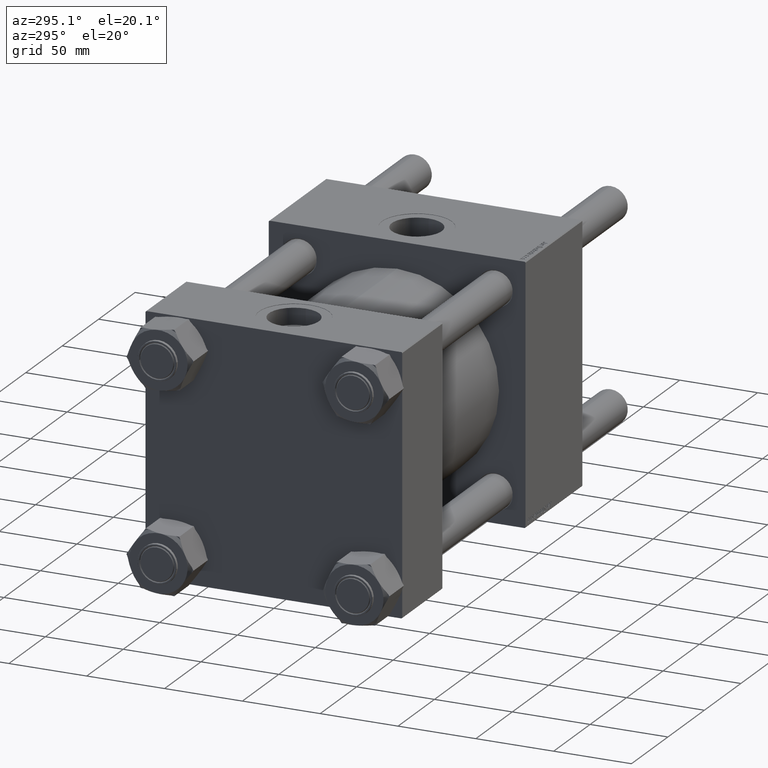
[diagram: clean part render]
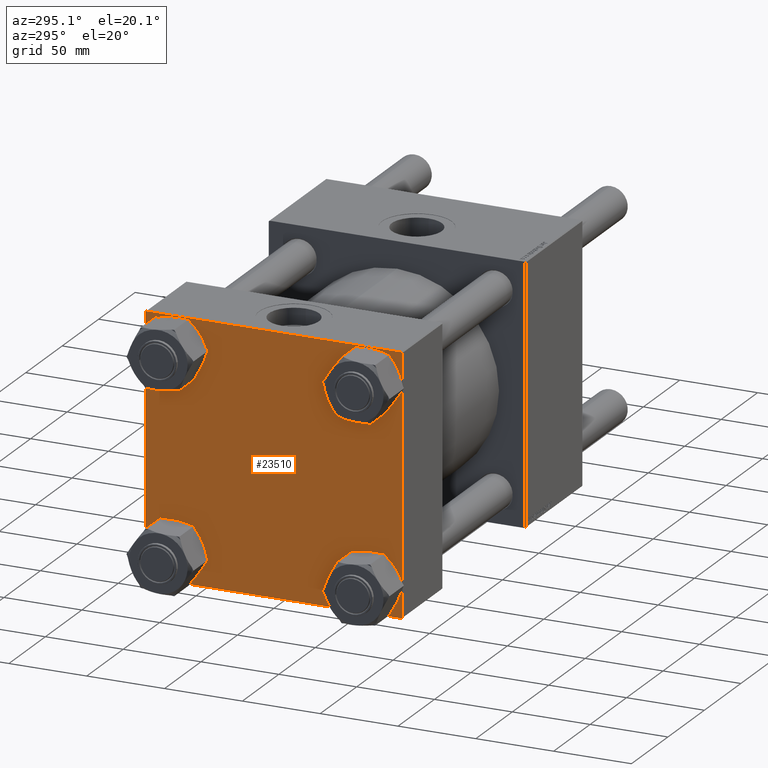
[diagram: same view with one face highlighted and labeled with its STEP entity id]
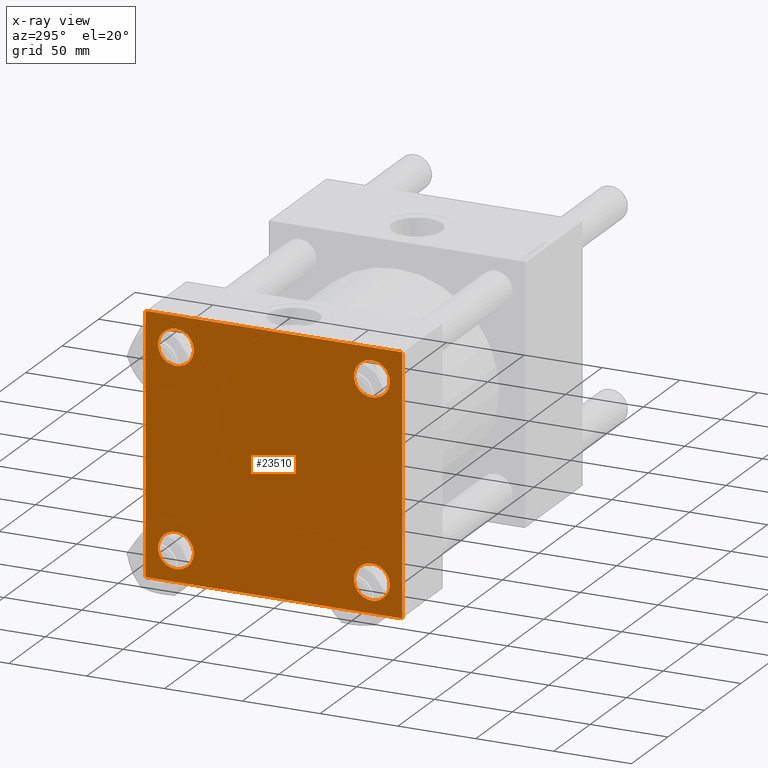
[diagram: x-ray of the same camera — body ghosted, the highlighted face saturated]
A machine part, auxiliary view. The second image highlights one B-rep face of the part: STEP entity #23510.
The next image is the same camera in x-ray: the body ghosted, the highlighted face saturated — about 0% of this face is hidden behind the body in this view.
In plain terms, the highlighted planar face has unit normal (-1, 0, 0).
Its self-contained STEP definition (entity closure, byte-faithful):
#228 = DIRECTION ( 'NONE',  ( 0.000000000000000000, -1.000000000000000000, -1.682156097916903588E-16 ) ) ;
#466 = CARTESIAN_POINT ( 'NONE',  ( 0.000000000000000000, 62.95000000000000284, -62.95000000000000284 ) ) ;
#1474 = VECTOR ( 'NONE', #5852, 1000.000000000000114 ) ;
#1678 = DIRECTION ( 'NONE',  ( 1.000000000000000000, -0.000000000000000000, -0.000000000000000000 ) ) ;
#1760 = FACE_BOUND ( 'NONE', #27392, .T. ) ;
#1916 = AXIS2_PLACEMENT_3D ( 'NONE', #466, #18987, #49662 ) ;
#2059 = ORIENTED_EDGE ( 'NONE', *, *, #8754, .T. ) ;
#2160 = VECTOR ( 'NONE', #40544, 999.9999999999998863 ) ;
#2270 = VERTEX_POINT ( 'NONE', #12460 ) ;
#3208 = ORIENTED_EDGE ( 'NONE', *, *, #28586, .T. ) ;
#3799 = CIRCLE ( 'NONE', #1916, 11.50000000000001066 ) ;
#4306 = DIRECTION ( 'NONE',  ( 0.000000000000000000, 0.000000000000000000, 1.000000000000000000 ) ) ;
#5560 = VERTEX_POINT ( 'NONE', #42546 ) ;
#5615 = VERTEX_POINT ( 'NONE', #44273 ) ;
#5852 = DIRECTION ( 'NONE',  ( -0.000000000000000000, -0.7071067811865474617, -0.7071067811865474617 ) ) ;
#6665 = FACE_OUTER_BOUND ( 'NONE', #9221, .T. ) ;
#6795 = CARTESIAN_POINT ( 'NONE',  ( 0.000000000000000000, -82.00000000000000000, -82.50000000000000000 ) ) ;
#8444 = EDGE_LOOP ( 'NONE', ( #48193, #38092 ) ) ;
#8754 = EDGE_CURVE ( 'NONE', #53440, #10338, #3799, .T. ) ;
#8894 = AXIS2_PLACEMENT_3D ( 'NONE', #10578, #32850, #50510 ) ;
#9001 = VERTEX_POINT ( 'NONE', #23133 ) ;
#9159 = CARTESIAN_POINT ( 'NONE',  ( 0.000000000000000000, 82.00000000000005684, -82.49999999999997158 ) ) ;
#9221 = EDGE_LOOP ( 'NONE', ( #26899, #17389, #21384, #16533, #14014, #11557, #28883, #15325 ) ) ;
#9601 = ORIENTED_EDGE ( 'NONE', *, *, #54724, .T. ) ;
#10160 = LINE ( 'NONE', #53867, #2160 ) ;
#10338 = VERTEX_POINT ( 'NONE', #40356 ) ;
#10578 = CARTESIAN_POINT ( 'NONE',  ( 0.000000000000000000, 62.95000000000000284, 62.95000000000000284 ) ) ;
#10613 = LINE ( 'NONE', #45910, #13653 ) ;
#10646 = DIRECTION ( 'NONE',  ( 0.000000000000000000, 0.000000000000000000, 1.000000000000000000 ) ) ;
#11188 = CARTESIAN_POINT ( 'NONE',  ( 0.000000000000000000, 82.50000000000002842, 82.50000000000002842 ) ) ;
#11449 = VECTOR ( 'NONE', #37607, 1000.000000000000114 ) ;
#11482 = CARTESIAN_POINT ( 'NONE',  ( 0.000000000000000000, -82.50000000000000000, -81.99999999999998579 ) ) ;
#11557 = ORIENTED_EDGE ( 'NONE', *, *, #56462, .T. ) ;
#12113 = CARTESIAN_POINT ( 'NONE',  ( 0.000000000000000000, 82.50000000000002842, 82.50000000000002842 ) ) ;
#12460 = CARTESIAN_POINT ( 'NONE',  ( 0.000000000000000000, 62.95000000000000284, 74.45000000000001705 ) ) ;
#12569 = EDGE_CURVE ( 'NONE', #37888, #57236, #44227, .T. ) ;
#13056 = ORIENTED_EDGE ( 'NONE', *, *, #43770, .T. ) ;
#13653 = VECTOR ( 'NONE', #39516, 1000.000000000000114 ) ;
#13988 = CARTESIAN_POINT ( 'NONE',  ( 0.000000000000000000, 62.95000000000000284, -62.95000000000000284 ) ) ;
#14014 = ORIENTED_EDGE ( 'NONE', *, *, #16451, .F. ) ;
#14104 = VERTEX_POINT ( 'NONE', #22517 ) ;
#14460 = VERTEX_POINT ( 'NONE', #49904 ) ;
#14724 = DIRECTION ( 'NONE',  ( 0.000000000000000000, 0.000000000000000000, 1.000000000000000000 ) ) ;
#15325 = ORIENTED_EDGE ( 'NONE', *, *, #40228, .T. ) ;
#15649 = DIRECTION ( 'NONE',  ( -1.000000000000000000, 0.000000000000000000, 0.000000000000000000 ) ) ;
#15657 = EDGE_LOOP ( 'NONE', ( #9601, #13056 ) ) ;
#15950 = VECTOR ( 'NONE', #34027, 1000.000000000000000 ) ;
#16101 = LINE ( 'NONE', #42429, #36342 ) ;
#16216 = FACE_BOUND ( 'NONE', #52111, .T. ) ;
#16451 = EDGE_CURVE ( 'NONE', #14104, #34460, #16101, .T. ) ;
#16533 = ORIENTED_EDGE ( 'NONE', *, *, #22488, .T. ) ;
#17389 = ORIENTED_EDGE ( 'NONE', *, *, #51346, .T. ) ;
#17483 = CARTESIAN_POINT ( 'NONE',  ( 0.000000000000000000, 62.95000000000000284, 51.44999999999999574 ) ) ;
#17910 = CARTESIAN_POINT ( 'NONE',  ( 0.000000000000000000, -62.94999999999998153, 62.95000000000001705 ) ) ;
#18334 = DIRECTION ( 'NONE',  ( 0.000000000000000000, 0.000000000000000000, 1.000000000000000000 ) ) ;
#18786 = VERTEX_POINT ( 'NONE', #20112 ) ;
#18987 = DIRECTION ( 'NONE',  ( 1.000000000000000000, -0.000000000000000000, -0.000000000000000000 ) ) ;
#19178 = LINE ( 'NONE', #19460, #1474 ) ;
#19460 = CARTESIAN_POINT ( 'NONE',  ( 0.000000000000000000, 82.25000000000001421, -82.25000000000001421 ) ) ;
#19922 = CIRCLE ( 'NONE', #35675, 11.50000000000001066 ) ;
#20112 = CARTESIAN_POINT ( 'NONE',  ( 0.000000000000000000, 82.50000000000002842, 82.00000000000005684 ) ) ;
#20555 = DIRECTION ( 'NONE',  ( 1.000000000000000000, -0.000000000000000000, -0.000000000000000000 ) ) ;
#20563 = FACE_BOUND ( 'NONE', #15657, .T. ) ;
#21067 = ORIENTED_EDGE ( 'NONE', *, *, #51149, .T. ) ;
#21384 = ORIENTED_EDGE ( 'NONE', *, *, #12569, .T. ) ;
#21859 = CARTESIAN_POINT ( 'NONE',  ( 0.000000000000000000, -62.94999999999998153, -62.95000000000001705 ) ) ;
#22250 = CARTESIAN_POINT ( 'NONE',  ( 0.000000000000000000, 82.50000000000002842, -82.49999999999997158 ) ) ;
#22488 = EDGE_CURVE ( 'NONE', #57236, #34460, #10160, .T. ) ;
#22517 = CARTESIAN_POINT ( 'NONE',  ( 0.000000000000000000, -82.49999999999997158, 82.00000000000001421 ) ) ;
#22597 = VECTOR ( 'NONE', #27431, 1000.000000000000000 ) ;
#22990 = VERTEX_POINT ( 'NONE', #43839 ) ;
#23133 = CARTESIAN_POINT ( 'NONE',  ( 0.000000000000000000, -62.94999999999998153, 51.45000000000000995 ) ) ;
#23510 = ADVANCED_FACE ( 'NONE', ( #1760, #20563, #16216, #46309, #6665 ), #37344, .T. ) ;
#24051 = DIRECTION ( 'NONE',  ( 0.000000000000000000, 0.000000000000000000, 1.000000000000000000 ) ) ;
#24688 = EDGE_CURVE ( 'NONE', #14460, #5615, #51754, .T. ) ;
#25014 = EDGE_CURVE ( 'NONE', #9001, #31539, #27267, .T. ) ;
#25084 = DIRECTION ( 'NONE',  ( 0.000000000000000000, -1.682156097916903588E-16, -1.000000000000000000 ) ) ;
#25096 = DIRECTION ( 'NONE',  ( 1.000000000000000000, -0.000000000000000000, -0.000000000000000000 ) ) ;
#26608 = DIRECTION ( 'NONE',  ( 1.000000000000000000, -0.000000000000000000, -0.000000000000000000 ) ) ;
#26899 = ORIENTED_EDGE ( 'NONE', *, *, #35905, .T. ) ;
#27267 = CIRCLE ( 'NONE', #32779, 11.50000000000001066 ) ;
#27392 = EDGE_LOOP ( 'NONE', ( #3208, #41308 ) ) ;
#27415 = CIRCLE ( 'NONE', #8894, 11.50000000000001066 ) ;
#27431 = DIRECTION ( 'NONE',  ( 0.000000000000000000, -1.000000000000000000, -8.410780489584519171E-17 ) ) ;
#28185 = AXIS2_PLACEMENT_3D ( 'NONE', #21859, #52815, #39490 ) ;
#28395 = VERTEX_POINT ( 'NONE', #17483 ) ;
#28586 = EDGE_CURVE ( 'NONE', #31539, #9001, #19922, .T. ) ;
#28883 = ORIENTED_EDGE ( 'NONE', *, *, #24688, .F. ) ;
#30123 = CIRCLE ( 'NONE', #37491, 11.50000000000001066 ) ;
#30592 = CARTESIAN_POINT ( 'NONE',  ( 0.000000000000000000, 62.95000000000000284, -74.45000000000001705 ) ) ;
#31510 = VERTEX_POINT ( 'NONE', #56774 ) ;
#31539 = VERTEX_POINT ( 'NONE', #34771 ) ;
#32779 = AXIS2_PLACEMENT_3D ( 'NONE', #54721, #20555, #24051 ) ;
#32850 = DIRECTION ( 'NONE',  ( 1.000000000000000000, -0.000000000000000000, -0.000000000000000000 ) ) ;
#34027 = DIRECTION ( 'NONE',  ( 0.000000000000000000, 0.000000000000000000, -1.000000000000000000 ) ) ;
#34460 = VERTEX_POINT ( 'NONE', #11482 ) ;
#34771 = CARTESIAN_POINT ( 'NONE',  ( 0.000000000000000000, -62.94999999999998153, 74.45000000000003126 ) ) ;
#35675 = AXIS2_PLACEMENT_3D ( 'NONE', #17910, #26608, #4306 ) ;
#35905 = EDGE_CURVE ( 'NONE', #18786, #31510, #42994, .T. ) ;
#36342 = VECTOR ( 'NONE', #25084, 1000.000000000000000 ) ;
#37344 = PLANE ( 'NONE',  #51205 ) ;
#37491 = AXIS2_PLACEMENT_3D ( 'NONE', #13988, #39165, #18334 ) ;
#37607 = DIRECTION ( 'NONE',  ( 0.000000000000000000, 0.7071067811865474617, -0.7071067811865474617 ) ) ;
#37888 = VERTEX_POINT ( 'NONE', #9159 ) ;
#38092 = ORIENTED_EDGE ( 'NONE', *, *, #46948, .T. ) ;
#38195 = CARTESIAN_POINT ( 'NONE',  ( 0.000000000000000000, 0.000000000000000000, 0.000000000000000000 ) ) ;
#39165 = DIRECTION ( 'NONE',  ( 1.000000000000000000, -0.000000000000000000, -0.000000000000000000 ) ) ;
#39490 = DIRECTION ( 'NONE',  ( 0.000000000000000000, 0.000000000000000000, 1.000000000000000000 ) ) ;
#39516 = DIRECTION ( 'NONE',  ( -0.000000000000000000, 0.7071067811865474617, 0.7071067811865474617 ) ) ;
#40228 = EDGE_CURVE ( 'NONE', #14460, #18786, #46289, .T. ) ;
#40356 = CARTESIAN_POINT ( 'NONE',  ( 0.000000000000000000, 62.95000000000000284, -51.44999999999999574 ) ) ;
#40544 = DIRECTION ( 'NONE',  ( 0.000000000000000000, -0.7071067811865376918, 0.7071067811865574537 ) ) ;
#40549 = EDGE_CURVE ( 'NONE', #2270, #28395, #55821, .T. ) ;
#41308 = ORIENTED_EDGE ( 'NONE', *, *, #25014, .T. ) ;
#41598 = CARTESIAN_POINT ( 'NONE',  ( 0.000000000000000000, -62.94999999999998153, -62.95000000000001705 ) ) ;
#42259 = DIRECTION ( 'NONE',  ( 0.000000000000000000, 0.000000000000000000, 1.000000000000000000 ) ) ;
#42429 = CARTESIAN_POINT ( 'NONE',  ( 0.000000000000000000, -82.49999999999997158, 82.50000000000001421 ) ) ;
#42546 = CARTESIAN_POINT ( 'NONE',  ( 0.000000000000000000, -62.94999999999998153, -74.45000000000003126 ) ) ;
#42690 = VECTOR ( 'NONE', #228, 1000.000000000000000 ) ;
#42994 = LINE ( 'NONE', #11188, #15950 ) ;
#43770 = EDGE_CURVE ( 'NONE', #5560, #22990, #47596, .T. ) ;
#43839 = CARTESIAN_POINT ( 'NONE',  ( 0.000000000000000000, -62.94999999999998153, -51.45000000000000995 ) ) ;
#44227 = LINE ( 'NONE', #22250, #42690 ) ;
#44273 = CARTESIAN_POINT ( 'NONE',  ( 0.000000000000000000, -81.99999999999997158, 82.50000000000001421 ) ) ;
#45910 = CARTESIAN_POINT ( 'NONE',  ( 0.000000000000000000, -82.25000000000000000, 82.25000000000000000 ) ) ;
#46289 = LINE ( 'NONE', #50930, #11449 ) ;
#46309 = FACE_BOUND ( 'NONE', #8444, .T. ) ;
#46948 = EDGE_CURVE ( 'NONE', #28395, #2270, #27415, .T. ) ;
#47512 = AXIS2_PLACEMENT_3D ( 'NONE', #55771, #25096, #10646 ) ;
#47596 = CIRCLE ( 'NONE', #28185, 11.50000000000001066 ) ;
#48193 = ORIENTED_EDGE ( 'NONE', *, *, #40549, .T. ) ;
#49662 = DIRECTION ( 'NONE',  ( 0.000000000000000000, 0.000000000000000000, 1.000000000000000000 ) ) ;
#49904 = CARTESIAN_POINT ( 'NONE',  ( 0.000000000000000000, 82.00000000000005684, 82.50000000000002842 ) ) ;
#50510 = DIRECTION ( 'NONE',  ( 0.000000000000000000, 0.000000000000000000, 1.000000000000000000 ) ) ;
#50930 = CARTESIAN_POINT ( 'NONE',  ( 0.000000000000000000, 82.25000000000002842, 82.25000000000002842 ) ) ;
#51149 = EDGE_CURVE ( 'NONE', #10338, #53440, #30123, .T. ) ;
#51205 = AXIS2_PLACEMENT_3D ( 'NONE', #38195, #15649, #42259 ) ;
#51346 = EDGE_CURVE ( 'NONE', #31510, #37888, #19178, .T. ) ;
#51754 = LINE ( 'NONE', #12113, #22597 ) ;
#52111 = EDGE_LOOP ( 'NONE', ( #21067, #2059 ) ) ;
#52439 = AXIS2_PLACEMENT_3D ( 'NONE', #41598, #1678, #14724 ) ;
#52815 = DIRECTION ( 'NONE',  ( 1.000000000000000000, -0.000000000000000000, -0.000000000000000000 ) ) ;
#53440 = VERTEX_POINT ( 'NONE', #30592 ) ;
#53867 = CARTESIAN_POINT ( 'NONE',  ( 0.000000000000000000, -82.25000000000115108, -82.24999999999886313 ) ) ;
#54246 = CIRCLE ( 'NONE', #52439, 11.50000000000001066 ) ;
#54721 = CARTESIAN_POINT ( 'NONE',  ( 0.000000000000000000, -62.94999999999998153, 62.95000000000001705 ) ) ;
#54724 = EDGE_CURVE ( 'NONE', #22990, #5560, #54246, .T. ) ;
#55771 = CARTESIAN_POINT ( 'NONE',  ( 0.000000000000000000, 62.95000000000000284, 62.95000000000000284 ) ) ;
#55821 = CIRCLE ( 'NONE', #47512, 11.50000000000001066 ) ;
#56462 = EDGE_CURVE ( 'NONE', #14104, #5615, #10613, .T. ) ;
#56774 = CARTESIAN_POINT ( 'NONE',  ( 0.000000000000000000, 82.50000000000002842, -82.00000000000000000 ) ) ;
#57236 = VERTEX_POINT ( 'NONE', #6795 ) ;